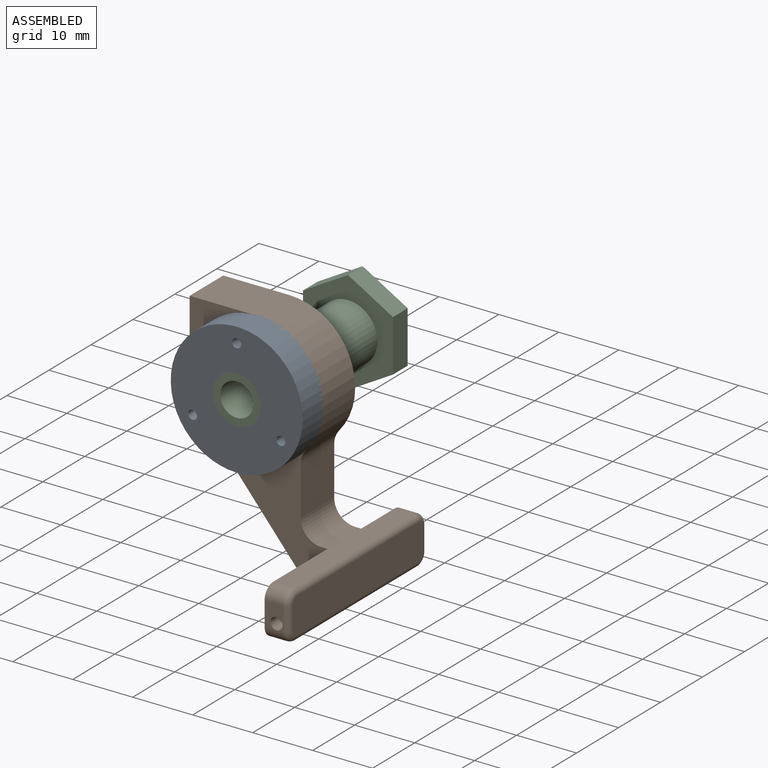
[diagram: assembled view]
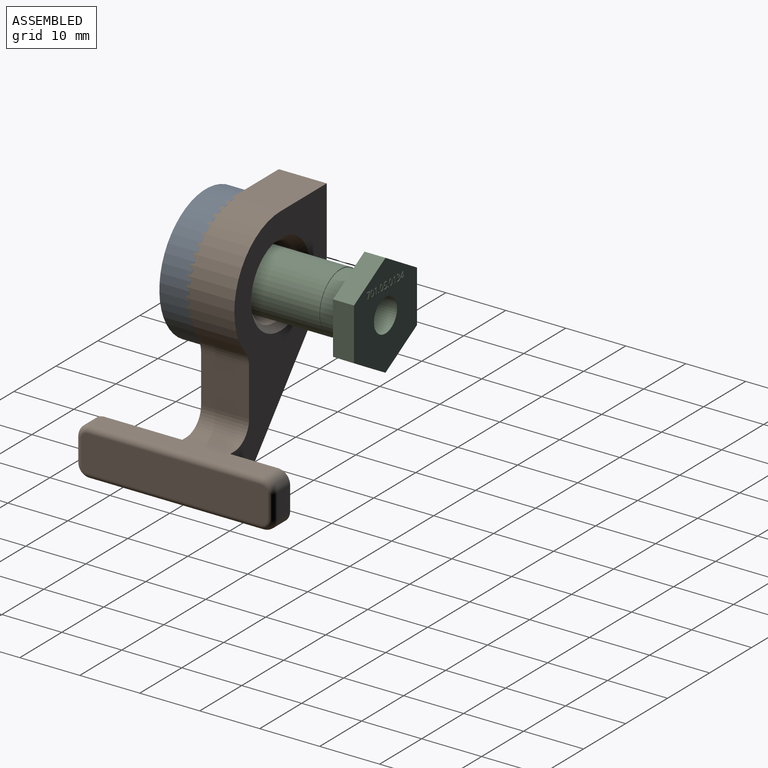
[diagram: assembled view, second angle]
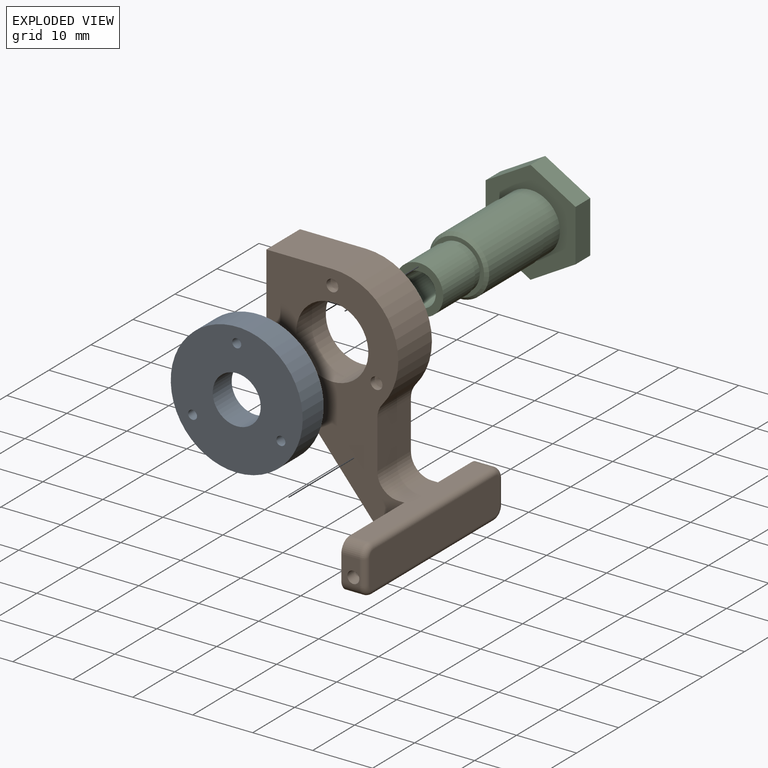
[diagram: exploded view]
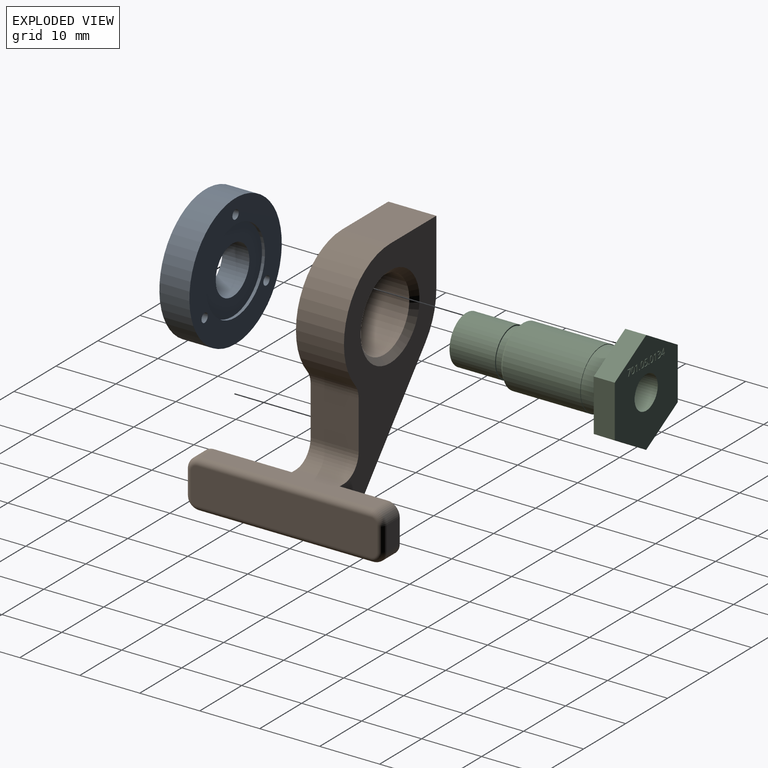
[diagram: exploded view, second angle]
ASSEMBLY  parts=3 mates=2
PART A: 9 faces, bbox 22x5x22 mm
  f0: cylinder r=4mm len=8mm, axis (0,1,0), area 113.1mm2, adj f2,f8
  f1: cylinder r=11mm len=22mm, axis (0,1,0), area 345.6mm2, adj f2,f3
  f2: plane 22x22mm, normal (0,-1,0), area 324.6mm2, adj f0,f1,f4,f5,f6
  f3: plane 22x22mm, normal (0,1,0), area 220.9mm2, adj f1,f4,f5,f6,f7
  f4: cylinder r=0.75mm len=5mm, axis (0,1,0), area 23.6mm2, adj f2,f3
  f5: cylinder r=0.75mm len=5mm, axis (0,1,0), area 23.6mm2, adj f2,f3
  f6: cylinder r=0.75mm len=5mm, axis (0,1,0), area 23.6mm2, adj f2,f3
  f7: cylinder r=7mm len=14mm, axis (0,1,0), area 22mm2, adj f3,f8
  f8: plane 14x14mm, normal (0,1,0), area 103.7mm2, adj f0,f7
PART B: 236 faces, bbox 27x33.3x40.2 mm
  f0: plane 1x1mm, normal (0,-1,0), area 0.2mm2, adj f20,f226,f235
  f1: plane 31x6mm, normal (1,0,0), area 185.1mm2, adj f19,f20,f21,f22,f227,f229,f231,f233
  f2: plane 21.93x18.4mm, normal (-0.77,0,-0.64), area 218.2mm2, adj f5,f6,f14,f16,f30,f31,f32,f33
  f3: plane 11x8mm, normal (-1,0,0), area 88mm2, adj f4,f5,f14,f16
  f4: plane 11x8mm, normal (0,0,1), area 88mm2, adj f3,f11,f14,f16
  f5: cylinder r=11mm len=8mm, axis (0,1,0), area 61.4mm2, adj f2,f3,f14,f16
  f6: plane 29x5.03mm, normal (0,0,-1), area 103.2mm2, adj f2,f14,f15,f16,f17,f22,f226,f230
  f7: plane 29x4mm, normal (0,0,1), area 95mm2, adj f8,f14,f15,f16,f17,f19,f228,f232
  f8: cylinder r=3.5mm len=8mm, axis (0,1,0), area 44mm2, adj f7,f9,f14,f16
  f9: plane 8.05x8mm, normal (1,0,0), area 64.4mm2, adj f8,f10,f14,f16
  f10: cylinder r=3.5mm len=8mm, axis (0,1,0), area 19.9mm2, adj f9,f11,f14,f16
  f11: cylinder r=11mm len=18.17mm, axis (0,1,0), area 200.7mm2, adj f4,f10,f14,f16
  f12: plane 4x3mm, normal (0,-1,0), area 8.6mm2, adj f15,f20,f226,f228,f235
  f13: plane 4x3mm, normal (0,1,0), area 12mm2, adj f17,f21,f230,f232
  f14: plane 40x23mm, normal (0,-1,0), area 424.4mm2, adj f2,f3,f4,f5,f6,f7,f8,f9
  f15: plane 15x8mm, normal (-1,0,0), area 118.3mm2, adj f6,f7,f12,f14,f226,f228
  f16: plane 40x23mm, normal (0,1,0), area 393mm2, adj f2,f3,f4,f5,f6,f7,f8,f9
  f17: plane 10x8mm, normal (-1,0,0), area 78.3mm2, adj f6,f7,f13,f16,f230,f232
  f18: cylinder r=6mm len=12mm, axis (0,1,0), area 263.9mm2, adj f14,f29
  f19: cylinder r=1mm len=29mm, axis (0,1,0), area 45.6mm2, adj f1,f7,f229,f233
  f20: cylinder r=1mm len=4mm, axis (0,0,-1), area 6.3mm2, adj f0,f1,f12,f227,f229
  f21: cylinder r=1mm len=4mm, axis (0,0,1), area 6.3mm2, adj f1,f13,f231,f233
  f22: cylinder r=1mm len=29mm, axis (0,-1,0), area 45.6mm2, adj f1,f6,f227,f231
  f23: cone r=0mm half-angle=59deg, axis (0,-1,0), area 3.7mm2, adj f24
  f24: cylinder r=1mm len=2mm, axis (0,-1,0), area 6.3mm2, adj f14,f23
  f25: cone r=0mm half-angle=59deg, axis (0,-1,0), area 3.7mm2, adj f26
  f26: cylinder r=1mm len=2mm, axis (0,-1,0), area 6.3mm2, adj f14,f25
  f27: cone r=0mm half-angle=59deg, axis (0,-1,0), area 3.7mm2, adj f28
  f28: cylinder r=1mm len=2mm, axis (0,-1,0), area 6.3mm2, adj f14,f27
  f29: cone r=7mm half-angle=45deg, axis (0,1,0), area 57.8mm2, adj f16,f18
  f30: extruded ~0.14x0.1mm, area 0mm2, adj f2,f31,f37,f38
  f31: extruded ~0.14x0.11mm, area 0mm2, adj f2,f30,f32,f38
  f32: extruded ~0.15x0.15mm, area 0mm2, adj f2,f31,f33,f38
  f33: extruded ~0.16x0.16mm, area 0mm2, adj f2,f32,f34,f38
  f34: extruded ~0.14x0.11mm, area 0mm2, adj f2,f33,f35,f38
  f35: extruded ~0.14x0.11mm, area 0mm2, adj f2,f34,f36,f38
  f36: extruded ~0.16x0.16mm, area 0mm2, adj f2,f35,f37,f38
  f37: extruded ~0.16x0.15mm, area 0mm2, adj f2,f30,f36,f38
  f38: plane 0.37x0.25mm, normal (-0.77,0,-0.64), area 0.1mm2, adj f30,f31,f32,f33,f34,f35,f36,f37
  f39: extruded ~0.31x0.15mm, area 0mm2, adj f2,f40,f66,f67
  f40: extruded ~0.36x0.19mm, area 0mm2, adj f2,f39,f41,f67
  f41: extruded ~0.41x0.37mm, area 0mm2, adj f2,f40,f42,f67
  f42: extruded ~0.32x0.29mm, area 0mm2, adj f2,f41,f43,f67
  f43: extruded ~0.28x0.26mm, area 0mm2, adj f2,f42,f44,f67
  f44: plane 0.15x0.15mm, normal (0.51,-0.6,-0.61), area 0mm2, adj f2,f43,f45,f67
  f45: extruded ~0.27x0.25mm, area 0mm2, adj f2,f44,f46,f67
  f46: extruded ~0.25x0.23mm, area 0mm2, adj f2,f45,f47,f67
  f47: extruded ~0.27x0.25mm, area 0mm2, adj f2,f46,f48,f67
  f48: extruded ~0.23x0.14mm, area 0mm2, adj f2,f47,f49,f67
  f49: extruded ~0.28x0.17mm, area 0mm2, adj f2,f48,f50,f67
  f50: extruded ~0.35x0.31mm, area 0mm2, adj f2,f49,f51,f67
  f51: plane 0.22x0.2mm, normal (0,1,0), area 0mm2, adj f2,f50,f52,f67
  f52: plane 0.19x0.08mm, normal (0.64,0,-0.77), area 0mm2, adj f2,f51,f53,f67
  f53: plane 0.21x0.2mm, normal (0,-1,0), area 0mm2, adj f2,f52,f54,f67
  f54: extruded ~0.5x0.44mm, area 0.1mm2, adj f2,f53,f55,f67
  f55: extruded ~0.46x0.41mm, area 0.1mm2, adj f2,f54,f56,f67
  f56: extruded ~0.28x0.25mm, area 0mm2, adj f2,f55,f57,f67
  f57: extruded ~0.27x0.25mm, area 0mm2, adj f2,f56,f58,f67
  f58: plane 0.21x0.08mm, normal (0.64,0,-0.77), area 0mm2, adj f2,f57,f59,f67
  f59: extruded ~0.26x0.24mm, area 0mm2, adj f2,f58,f60,f67
  f60: extruded ~0.29x0.26mm, area 0mm2, adj f2,f59,f61,f67
  f61: extruded ~0.49x0.44mm, area 0.1mm2, adj f2,f60,f62,f67
  f62: extruded ~0.44x0.22mm, area 0mm2, adj f2,f61,f63,f67
  f63: extruded ~0.32x0.15mm, area 0mm2, adj f2,f62,f64,f67
  f64: extruded ~0.34x0.3mm, area 0mm2, adj f2,f63,f65,f67
  f65: plane 0.08x0.06mm, normal (-0.64,0,0.77), area 0mm2, adj f2,f64,f66,f67
  f66: extruded ~0.3x0.27mm, area 0mm2, adj f2,f39,f65,f67
  f67: plane 2.04x0.99mm, normal (-0.77,0,-0.64), area 0.9mm2, adj f39,f40,f41,f42,f43,f44,f45,f46
  f68: extruded ~0.31x0.15mm, area 0mm2, adj f2,f69,f95,f96
  f69: extruded ~0.36x0.19mm, area 0mm2, adj f2,f68,f70,f96
  f70: extruded ~0.41x0.37mm, area 0mm2, adj f2,f69,f71,f96
  f71: extruded ~0.32x0.29mm, area 0mm2, adj f2,f70,f72,f96
  f72: extruded ~0.28x0.26mm, area 0mm2, adj f2,f71,f73,f96
  f73: plane 0.15x0.15mm, normal (0.51,-0.6,-0.61), area 0mm2, adj f2,f72,f74,f96
  f74: extruded ~0.27x0.25mm, area 0mm2, adj f2,f73,f75,f96
  f75: extruded ~0.25x0.23mm, area 0mm2, adj f2,f74,f76,f96
  f76: extruded ~0.27x0.25mm, area 0mm2, adj f2,f75,f77,f96
  f77: extruded ~0.23x0.14mm, area 0mm2, adj f2,f76,f78,f96
  f78: extruded ~0.28x0.17mm, area 0mm2, adj f2,f77,f79,f96
  f79: extruded ~0.35x0.31mm, area 0mm2, adj f2,f78,f80,f96
  f80: plane 0.22x0.2mm, normal (0,1,0), area 0mm2, adj f2,f79,f81,f96
  f81: plane 0.19x0.08mm, normal (0.64,0,-0.77), area 0mm2, adj f2,f80,f82,f96
  f82: plane 0.21x0.2mm, normal (0,-1,0), area 0mm2, adj f2,f81,f83,f96
  f83: extruded ~0.5x0.44mm, area 0.1mm2, adj f2,f82,f84,f96
  f84: extruded ~0.46x0.41mm, area 0.1mm2, adj f2,f83,f85,f96
  f85: extruded ~0.28x0.25mm, area 0mm2, adj f2,f84,f86,f96
  f86: extruded ~0.27x0.25mm, area 0mm2, adj f2,f85,f87,f96
  f87: plane 0.21x0.08mm, normal (0.64,0,-0.77), area 0mm2, adj f2,f86,f88,f96
  f88: extruded ~0.26x0.24mm, area 0mm2, adj f2,f87,f89,f96
  f89: extruded ~0.29x0.26mm, area 0mm2, adj f2,f88,f90,f96
  f90: extruded ~0.49x0.44mm, area 0.1mm2, adj f2,f89,f91,f96
  f91: extruded ~0.44x0.22mm, area 0mm2, adj f2,f90,f92,f96
  f92: extruded ~0.32x0.15mm, area 0mm2, adj f2,f91,f93,f96
  f93: extruded ~0.34x0.3mm, area 0mm2, adj f2,f92,f94,f96
  f94: plane 0.08x0.06mm, normal (-0.64,0,0.77), area 0mm2, adj f2,f93,f95,f96
  f95: extruded ~0.3x0.27mm, area 0mm2, adj f2,f68,f94,f96
  f96: plane 2.04x0.99mm, normal (-0.77,0,-0.64), area 0.9mm2, adj f68,f69,f70,f71,f72,f73,f74,f75
  f97: extruded ~0.63x0.14mm, area 0.1mm2, adj f98,f112,f113,f223
  f98: extruded ~0.63x0.14mm, area 0.1mm2, adj f97,f99,f113,f223
  f99: extruded ~0.31x0.29mm, area 0mm2, adj f98,f100,f113,f223
  f100: extruded ~0.31x0.29mm, area 0mm2, adj f99,f101,f113,f223
  f101: extruded ~0.63x0.14mm, area 0.1mm2, adj f100,f102,f113,f223
  f102: extruded ~0.63x0.14mm, area 0.1mm2, adj f101,f103,f113,f223
  f103: extruded ~0.31x0.29mm, area 0mm2, adj f102,f112,f113,f223
  f104: extruded ~0.77x0.19mm, area 0.1mm2, adj f2,f105,f111,f113
  f105: extruded ~0.76x0.19mm, area 0.1mm2, adj f2,f104,f106,f113
  f106: extruded ~0.44x0.39mm, area 0.1mm2, adj f2,f105,f107,f113
  f107: extruded ~0.44x0.39mm, area 0.1mm2, adj f2,f106,f108,f113
  f108: extruded ~0.77x0.19mm, area 0.1mm2, adj f2,f107,f109,f113
  f109: extruded ~0.76x0.19mm, area 0.1mm2, adj f2,f108,f110,f113
  f110: extruded ~0.44x0.39mm, area 0.1mm2, adj f2,f109,f111,f113
  f111: extruded ~0.44x0.4mm, area 0.1mm2, adj f2,f104,f110,f113
  f112: extruded ~0.31x0.29mm, area 0mm2, adj f97,f103,f113,f223
  f113: plane 2.04x1mm, normal (-0.77,0,-0.64), area 1mm2, adj f97,f98,f99,f100,f101,f102,f103,f104
  f114: extruded ~0.31x0.15mm, area 0mm2, adj f2,f115,f141,f142
  f115: extruded ~0.36x0.19mm, area 0mm2, adj f2,f114,f116,f142
  f116: extruded ~0.41x0.37mm, area 0mm2, adj f2,f115,f117,f142
  f117: extruded ~0.32x0.29mm, area 0mm2, adj f2,f116,f118,f142
  f118: extruded ~0.28x0.26mm, area 0mm2, adj f2,f117,f119,f142
  f119: plane 0.15x0.15mm, normal (0.51,-0.6,-0.61), area 0mm2, adj f2,f118,f120,f142
  f120: extruded ~0.27x0.25mm, area 0mm2, adj f2,f119,f121,f142
  f121: extruded ~0.25x0.23mm, area 0mm2, adj f2,f120,f122,f142
  f122: extruded ~0.27x0.25mm, area 0mm2, adj f2,f121,f123,f142
  f123: extruded ~0.23x0.14mm, area 0mm2, adj f2,f122,f124,f142
  f124: extruded ~0.28x0.17mm, area 0mm2, adj f2,f123,f125,f142
  f125: extruded ~0.35x0.31mm, area 0mm2, adj f2,f124,f126,f142
  f126: plane 0.22x0.2mm, normal (0,1,0), area 0mm2, adj f2,f125,f127,f142
  f127: plane 0.19x0.08mm, normal (0.64,0,-0.77), area 0mm2, adj f2,f126,f128,f142
  f128: plane 0.21x0.2mm, normal (0,-1,0), area 0mm2, adj f2,f127,f129,f142
  f129: extruded ~0.5x0.44mm, area 0.1mm2, adj f2,f128,f130,f142
  f130: extruded ~0.46x0.41mm, area 0.1mm2, adj f2,f129,f131,f142
  f131: extruded ~0.28x0.25mm, area 0mm2, adj f2,f130,f132,f142
  f132: extruded ~0.27x0.25mm, area 0mm2, adj f2,f131,f133,f142
  f133: plane 0.21x0.08mm, normal (0.64,0,-0.77), area 0mm2, adj f2,f132,f134,f142
  f134: extruded ~0.26x0.24mm, area 0mm2, adj f2,f133,f135,f142
  f135: extruded ~0.29x0.26mm, area 0mm2, adj f2,f134,f136,f142
  f136: extruded ~0.49x0.44mm, area 0.1mm2, adj f2,f135,f137,f142
  f137: extruded ~0.44x0.22mm, area 0mm2, adj f2,f136,f138,f142
  f138: extruded ~0.32x0.15mm, area 0mm2, adj f2,f137,f139,f142
  f139: extruded ~0.34x0.3mm, area 0mm2, adj f2,f138,f140,f142
  f140: plane 0.08x0.06mm, normal (-0.64,0,0.77), area 0mm2, adj f2,f139,f141,f142
  f141: extruded ~0.3x0.27mm, area 0mm2, adj f2,f114,f140,f142
  f142: plane 2.04x0.99mm, normal (-0.77,0,-0.64), area 0.9mm2, adj f114,f115,f116,f117,f118,f119,f120,f121
  f143: plane 0.23x0.22mm, normal (0,-1,0), area 0mm2, adj f2,f144,f151,f152
  f144: plane 1.98x0.08mm, normal (-0.64,0,0.77), area 0.2mm2, adj f2,f143,f145,f152
  f145: plane 0.21x0.2mm, normal (0,1,0), area 0mm2, adj f2,f144,f146,f152
  f146: plane 0.47x0.41mm, normal (0.39,0.79,-0.47), area 0.1mm2, adj f2,f145,f147,f152
  f147: plane 0.16x0.15mm, normal (0.51,-0.61,-0.61), area 0mm2, adj f2,f146,f148,f152
  f148: extruded ~0.31x0.28mm, area 0mm2, adj f2,f147,f149,f152
  f149: extruded ~0.12x0.11mm, area 0mm2, adj f2,f148,f150,f152
  f150: extruded ~0.33x0.08mm, area 0mm2, adj f2,f149,f151,f152
  f151: plane 1.41x0.08mm, normal (0.64,0,-0.77), area 0.1mm2, adj f2,f143,f150,f152
  f152: plane 1.98x0.55mm, normal (-0.77,0,-0.64), area 0.5mm2, adj f143,f144,f145,f146,f147,f148,f149,f150
  f153: extruded ~0.14x0.1mm, area 0mm2, adj f2,f154,f160,f161
  f154: extruded ~0.14x0.11mm, area 0mm2, adj f2,f153,f155,f161
  f155: extruded ~0.15x0.15mm, area 0mm2, adj f2,f154,f156,f161
  f156: extruded ~0.16x0.16mm, area 0mm2, adj f2,f155,f157,f161
  f157: extruded ~0.14x0.11mm, area 0mm2, adj f2,f156,f158,f161
  f158: extruded ~0.14x0.11mm, area 0mm2, adj f2,f157,f159,f161
  f159: extruded ~0.16x0.16mm, area 0mm2, adj f2,f158,f160,f161
  f160: extruded ~0.16x0.15mm, area 0mm2, adj f2,f153,f159,f161
  f161: plane 0.37x0.25mm, normal (-0.77,0,-0.64), area 0.1mm2, adj f153,f154,f155,f156,f157,f158,f159,f160
  f162: plane 0.23x0.22mm, normal (0,-1,0), area 0mm2, adj f2,f163,f170,f171
  f163: plane 1.98x0.08mm, normal (-0.64,0,0.77), area 0.2mm2, adj f2,f162,f164,f171
  f164: plane 0.21x0.2mm, normal (0,1,0), area 0mm2, adj f2,f163,f165,f171
  f165: plane 0.47x0.41mm, normal (0.39,0.79,-0.47), area 0.1mm2, adj f2,f164,f166,f171
  f166: plane 0.16x0.15mm, normal (0.51,-0.61,-0.61), area 0mm2, adj f2,f165,f167,f171
  f167: extruded ~0.31x0.28mm, area 0mm2, adj f2,f166,f168,f171
  f168: extruded ~0.12x0.11mm, area 0mm2, adj f2,f167,f169,f171
  f169: extruded ~0.33x0.08mm, area 0mm2, adj f2,f168,f170,f171
  f170: plane 1.41x0.08mm, normal (0.64,0,-0.77), area 0.1mm2, adj f2,f162,f169,f171
  f171: plane 1.98x0.55mm, normal (-0.77,0,-0.64), area 0.5mm2, adj f162,f163,f164,f165,f166,f167,f168,f169
  f172: extruded ~0.29x0.27mm, area 0mm2, adj f173,f196,f197,f224
  f173: extruded ~0.24x0.22mm, area 0mm2, adj f172,f174,f197,f224
  f174: extruded ~0.19x0.18mm, area 0mm2, adj f173,f175,f197,f224
  f175: extruded ~0.26x0.11mm, area 0mm2, adj f174,f176,f197,f224
  f176: extruded ~0.18x0.12mm, area 0mm2, adj f175,f177,f197,f224
  f177: extruded ~0.19x0.18mm, area 0mm2, adj f176,f178,f197,f224
  f178: extruded ~0.24x0.22mm, area 0mm2, adj f177,f179,f197,f224
  f179: extruded ~0.29x0.27mm, area 0mm2, adj f178,f180,f197,f224
  f180: extruded ~0.31x0.14mm, area 0mm2, adj f179,f196,f197,f224
  f181: extruded ~0.87x0.24mm, area 0.1mm2, adj f2,f182,f195,f197
  f182: extruded ~0.64x0.2mm, area 0.1mm2, adj f2,f181,f183,f197
  f183: extruded ~0.44x0.39mm, area 0.1mm2, adj f2,f182,f184,f197
  f184: extruded ~0.41x0.37mm, area 0.1mm2, adj f2,f183,f185,f197
  f185: extruded ~0.49x0.19mm, area 0.1mm2, adj f2,f184,f186,f197
  f186: extruded ~0.44x0.18mm, area 0mm2, adj f2,f185,f187,f197
  f187: extruded ~0.39x0.35mm, area 0mm2, adj f2,f186,f188,f197
  f188: extruded ~0.43x0.38mm, area 0.1mm2, adj f2,f187,f189,f197
  f189: plane 0.09x0.08mm, normal (0,1,0), area 0mm2, adj f2,f188,f190,f197
  f190: extruded ~0.62x0.21mm, area 0.1mm2, adj f2,f189,f191,f197
  f191: extruded ~0.44x0.39mm, area 0.1mm2, adj f2,f190,f192,f197
  f192: extruded ~0.25x0.23mm, area 0mm2, adj f2,f191,f193,f197
  f193: plane 0.19x0.08mm, normal (-0.64,0,0.77), area 0mm2, adj f2,f192,f194,f197
  f194: extruded ~0.25x0.23mm, area 0mm2, adj f2,f193,f195,f197
  f195: extruded ~0.58x0.51mm, area 0.1mm2, adj f2,f181,f194,f197
  f196: extruded ~0.35x0.15mm, area 0mm2, adj f172,f180,f197,f224
  f197: plane 2.04x0.99mm, normal (-0.77,0,-0.64), area 1mm2, adj f172,f173,f174,f175,f176,f177,f178,f179
  f198: extruded ~0.63x0.14mm, area 0.1mm2, adj f199,f213,f214,f225
  f199: extruded ~0.63x0.14mm, area 0.1mm2, adj f198,f200,f214,f225
  f200: extruded ~0.31x0.29mm, area 0mm2, adj f199,f201,f214,f225
  f201: extruded ~0.31x0.29mm, area 0mm2, adj f200,f202,f214,f225
  f202: extruded ~0.63x0.14mm, area 0.1mm2, adj f201,f203,f214,f225
  f203: extruded ~0.63x0.14mm, area 0.1mm2, adj f202,f204,f214,f225
  f204: extruded ~0.31x0.29mm, area 0mm2, adj f203,f213,f214,f225
  f205: extruded ~0.77x0.19mm, area 0.1mm2, adj f2,f206,f212,f214
  f206: extruded ~0.76x0.19mm, area 0.1mm2, adj f2,f205,f207,f214
  f207: extruded ~0.44x0.39mm, area 0.1mm2, adj f2,f206,f208,f214
  f208: extruded ~0.44x0.39mm, area 0.1mm2, adj f2,f207,f209,f214
  f209: extruded ~0.77x0.19mm, area 0.1mm2, adj f2,f208,f210,f214
  f210: extruded ~0.76x0.19mm, area 0.1mm2, adj f2,f209,f211,f214
  f211: extruded ~0.44x0.39mm, area 0.1mm2, adj f2,f210,f212,f214
  f212: extruded ~0.44x0.4mm, area 0.1mm2, adj f2,f205,f211,f214
  f213: extruded ~0.31x0.29mm, area 0mm2, adj f198,f204,f214,f225
  f214: plane 2.04x1mm, normal (-0.77,0,-0.64), area 1mm2, adj f198,f199,f200,f201,f202,f203,f204,f205
  f215: plane 1.78x0.69mm, normal (0.58,0.42,-0.7), area 0.2mm2, adj f2,f216,f221,f222
  f216: plane 0.26x0.24mm, normal (0,-1,0), area 0mm2, adj f2,f215,f217,f222
  f217: plane 1.8x0.69mm, normal (-0.59,-0.41,0.7), area 0.2mm2, adj f2,f216,f218,f222
  f218: plane 0.18x0.08mm, normal (-0.64,0,0.77), area 0mm2, adj f2,f217,f219,f222
  f219: plane 1.08x0.92mm, normal (0,1,0), area 0.1mm2, adj f2,f218,f220,f222
  f220: plane 0.21x0.08mm, normal (0.64,0,-0.77), area 0mm2, adj f2,f219,f221,f222
  f221: plane 0.89x0.77mm, normal (0,-1,0), area 0.1mm2, adj f2,f215,f220,f222
  f222: plane 1.98x1.01mm, normal (-0.77,0,-0.64), area 0.7mm2, adj f215,f216,f217,f218,f219,f220,f221
  f223: plane 1.65x0.65mm, normal (-0.77,0,-0.64), area 1.2mm2, adj f97,f98,f99,f100,f101,f102,f103,f112
  f224: plane 0.89x0.64mm, normal (-0.77,0,-0.64), area 0.6mm2, adj f172,f173,f174,f175,f176,f177,f178,f179
  f225: plane 1.65x0.65mm, normal (-0.77,0,-0.64), area 1.2mm2, adj f198,f199,f200,f201,f202,f203,f204,f213
  f226: cylinder r=2mm len=3mm, axis (-1,0,0), area 9.4mm2, adj f0,f6,f12,f15,f227
  f227: torus R=1mm, axis (1,0,0), area 4mm2, adj f1,f20,f22,f226
  f228: cylinder r=2mm len=3mm, axis (1,0,0), area 9.4mm2, adj f7,f12,f15,f229
  f229: torus R=1mm, axis (1,0,0), area 4mm2, adj f1,f19,f20,f228
  f230: cylinder r=2mm len=3mm, axis (1,0,0), area 9.4mm2, adj f6,f13,f17,f231
  f231: torus R=1mm, axis (1,0,0), area 4mm2, adj f1,f21,f22,f230
  f232: cylinder r=2mm len=3mm, axis (-1,0,0), area 9.4mm2, adj f7,f13,f17,f233
  f233: torus R=1mm, axis (1,0,0), area 4mm2, adj f1,f19,f21,f232
  f234: cone r=0mm half-angle=59deg, axis (0,-1,0), area 3.7mm2, adj f235
  f235: cylinder r=1mm len=7mm, axis (0,-1,0), area 44mm2, adj f0,f12,f234
PART C: 186 faces, bbox 15x30x17.3 mm
  f0: plane 17.32x15mm, normal (0,1,0), area 167.3mm2, adj f4,f11,f12,f13,f14,f15,f16,f25
  f1: plane 17.32x15mm, normal (0,-1,0), area 119.4mm2, adj f5,f11,f12,f13,f14,f15,f16
  f2: cylinder r=4mm len=8mm, axis (0,-1,0), area 191mm2, adj f3,f10
  f3: plane 8x8mm, normal (0,-1,0), area 26.5mm2, adj f2,f4
  f4: cylinder r=2.75mm len=30mm, axis (0,-1,0), area 518.4mm2, adj f0,f3
  f5: cylinder r=4.9mm len=9.8mm, axis (0,-1,0), area 123.2mm2, adj f1,f6
  f6: plane 10x10mm, normal (0,1,0), area 3.1mm2, adj f5,f7
  f7: cylinder r=5mm len=13mm, axis (0,-1,0), area 408.4mm2, adj f6,f17
  f8: plane 9x9mm, normal (0,-1,0), area 18.3mm2, adj f9,f17
  f9: cylinder r=3.8mm len=7.6mm, axis (0,-1,0), area 33.4mm2, adj f8,f10
  f10: plane 8x8mm, normal (0,1,0), area 4.9mm2, adj f2,f9
  f11: plane 7.5x4.33mm, normal (-0.5,0,0.87), area 30.3mm2, adj f0,f1,f12,f16
  f12: plane 8.66x3.5mm, normal (-1,0,0), area 30.3mm2, adj f0,f1,f11,f13
  f13: plane 7.5x4.33mm, normal (-0.5,0,-0.87), area 30.3mm2, adj f0,f1,f12,f14
  f14: plane 7.5x4.33mm, normal (0.5,0,-0.87), area 30.3mm2, adj f0,f1,f13,f15
  f15: plane 8.66x3.5mm, normal (1,0,0), area 30.3mm2, adj f0,f1,f14,f16
  f16: plane 7.5x4.33mm, normal (0.5,0,0.87), area 30.3mm2, adj f0,f1,f11,f15
  f17: cone r=4.5mm half-angle=45deg, axis (0,1,0), area 21.1mm2, adj f7,f8
  f18: extruded ~0.36x0.1mm, area 0mm2, adj f19,f33,f34,f182
  f19: extruded ~0.36x0.1mm, area 0mm2, adj f18,f20,f34,f182
  f20: extruded ~0.18x0.11mm, area 0mm2, adj f19,f21,f34,f182
  f21: extruded ~0.19x0.11mm, area 0mm2, adj f20,f22,f34,f182
  f22: extruded ~0.35x0.1mm, area 0mm2, adj f21,f23,f34,f182
  f23: extruded ~0.36x0.1mm, area 0mm2, adj f22,f24,f34,f182
  f24: extruded ~0.19x0.11mm, area 0mm2, adj f23,f33,f34,f182
  f25: extruded ~0.44x0.1mm, area 0mm2, adj f0,f26,f32,f34
  f26: extruded ~0.43x0.1mm, area 0mm2, adj f0,f25,f27,f34
  f27: extruded ~0.28x0.15mm, area 0mm2, adj f0,f26,f28,f34
  f28: extruded ~0.28x0.14mm, area 0mm2, adj f0,f27,f29,f34
  f29: extruded ~0.44x0.1mm, area 0mm2, adj f0,f28,f30,f34
  f30: extruded ~0.43x0.1mm, area 0mm2, adj f0,f29,f31,f34
  f31: extruded ~0.28x0.15mm, area 0mm2, adj f0,f30,f32,f34
  f32: extruded ~0.28x0.14mm, area 0mm2, adj f0,f25,f31,f34
  f33: extruded ~0.18x0.11mm, area 0mm2, adj f18,f24,f34,f182
  f34: plane 1.16x0.74mm, normal (0,1,0), area 0.3mm2, adj f18,f19,f20,f21,f22,f23,f24,f25
  f35: extruded ~0.36x0.1mm, area 0mm2, adj f36,f50,f51,f183
  f36: extruded ~0.36x0.1mm, area 0mm2, adj f35,f37,f51,f183
  f37: extruded ~0.18x0.11mm, area 0mm2, adj f36,f38,f51,f183
  f38: extruded ~0.19x0.11mm, area 0mm2, adj f37,f39,f51,f183
  f39: extruded ~0.35x0.1mm, area 0mm2, adj f38,f40,f51,f183
  f40: extruded ~0.36x0.1mm, area 0mm2, adj f39,f41,f51,f183
  f41: extruded ~0.19x0.11mm, area 0mm2, adj f40,f50,f51,f183
  f42: extruded ~0.44x0.1mm, area 0mm2, adj f0,f43,f49,f51
  f43: extruded ~0.43x0.1mm, area 0mm2, adj f0,f42,f44,f51
  f44: extruded ~0.28x0.15mm, area 0mm2, adj f0,f43,f45,f51
  f45: extruded ~0.28x0.14mm, area 0mm2, adj f0,f44,f46,f51
  f46: extruded ~0.44x0.1mm, area 0mm2, adj f0,f45,f47,f51
  f47: extruded ~0.43x0.1mm, area 0mm2, adj f0,f46,f48,f51
  f48: extruded ~0.28x0.15mm, area 0mm2, adj f0,f47,f49,f51
  f49: extruded ~0.28x0.14mm, area 0mm2, adj f0,f42,f48,f51
  f50: extruded ~0.18x0.11mm, area 0mm2, adj f35,f41,f51,f183
  f51: plane 1.16x0.74mm, normal (0,1,0), area 0.3mm2, adj f35,f36,f37,f38,f39,f40,f41,f42
  f52: extruded ~0.18x0.1mm, area 0mm2, adj f0,f53,f79,f80
  f53: extruded ~0.21x0.1mm, area 0mm2, adj f0,f52,f54,f80
  f54: extruded ~0.25x0.1mm, area 0mm2, adj f0,f53,f55,f80
  f55: extruded ~0.19x0.1mm, area 0mm2, adj f0,f54,f56,f80
  f56: extruded ~0.16x0.1mm, area 0mm2, adj f0,f55,f57,f80
  f57: plane 0.1x0.09mm, normal (-0.8,0,0.6), area 0mm2, adj f0,f56,f58,f80
  f58: extruded ~0.15x0.1mm, area 0mm2, adj f0,f57,f59,f80
  f59: extruded ~0.14x0.1mm, area 0mm2, adj f0,f58,f60,f80
  f60: extruded ~0.15x0.1mm, area 0mm2, adj f0,f59,f61,f80
  f61: extruded ~0.13x0.1mm, area 0mm2, adj f0,f60,f62,f80
  f62: extruded ~0.16x0.1mm, area 0mm2, adj f0,f61,f63,f80
  f63: extruded ~0.21x0.1mm, area 0mm2, adj f0,f62,f64,f80
  f64: plane 0.11x0.1mm, normal (0,0,-1), area 0mm2, adj f0,f63,f65,f80
  f65: plane 0.11x0.1mm, normal (-1,0,0), area 0mm2, adj f0,f64,f66,f80
  f66: plane 0.11x0.1mm, normal (0,0,1), area 0mm2, adj f0,f65,f67,f80
  f67: extruded ~0.32x0.2mm, area 0mm2, adj f0,f66,f68,f80
  f68: extruded ~0.29x0.23mm, area 0mm2, adj f0,f67,f69,f80
  f69: extruded ~0.16x0.1mm, area 0mm2, adj f0,f68,f70,f80
  f70: extruded ~0.16x0.1mm, area 0mm2, adj f0,f69,f71,f80
  f71: plane 0.12x0.1mm, normal (-1,0,0), area 0mm2, adj f0,f70,f72,f80
  f72: extruded ~0.14x0.1mm, area 0mm2, adj f0,f71,f73,f80
  f73: extruded ~0.16x0.1mm, area 0mm2, adj f0,f72,f74,f80
  f74: extruded ~0.32x0.1mm, area 0mm2, adj f0,f73,f75,f80
  f75: extruded ~0.25x0.11mm, area 0mm2, adj f0,f74,f76,f80
  f76: extruded ~0.18x0.1mm, area 0mm2, adj f0,f75,f77,f80
  f77: extruded ~0.2x0.1mm, area 0mm2, adj f0,f76,f78,f80
  f78: plane 0.1x0.01mm, normal (1,0,0), area 0mm2, adj f0,f77,f79,f80
  f79: extruded ~0.17x0.1mm, area 0mm2, adj f0,f52,f78,f80
  f80: plane 1.16x0.74mm, normal (0,1,0), area 0.3mm2, adj f52,f53,f54,f55,f56,f57,f58,f59
  f81: plane 0.12x0.1mm, normal (0,0,1), area 0mm2, adj f0,f82,f89,f90
  f82: plane 1.12x0.1mm, normal (1,0,0), area 0.1mm2, adj f0,f81,f83,f90
  f83: plane 0.11x0.1mm, normal (0,0,-1), area 0mm2, adj f0,f82,f84,f90
  f84: plane 0.3x0.23mm, normal (-0.61,0,-0.79), area 0mm2, adj f0,f83,f85,f90
  f85: plane 0.1x0.09mm, normal (-0.79,0,0.61), area 0mm2, adj f0,f84,f86,f90
  f86: extruded ~0.18x0.15mm, area 0mm2, adj f0,f85,f87,f90
  f87: extruded ~0.1x0.04mm, area 0mm2, adj f0,f86,f88,f90
  f88: extruded ~0.19x0.1mm, area 0mm2, adj f0,f87,f89,f90
  f89: plane 0.8x0.1mm, normal (-1,0,0), area 0.1mm2, adj f0,f81,f88,f90
  f90: plane 1.12x0.41mm, normal (0,1,0), area 0.2mm2, adj f81,f82,f83,f84,f85,f86,f87,f88
  f91: extruded ~0.1x0.08mm, area 0mm2, adj f0,f92,f98,f99
  f92: extruded ~0.1x0.08mm, area 0mm2, adj f0,f91,f93,f99
  f93: extruded ~0.1x0.07mm, area 0mm2, adj f0,f92,f94,f99
  f94: extruded ~0.1x0.07mm, area 0mm2, adj f0,f93,f95,f99
  f95: extruded ~0.1x0.08mm, area 0mm2, adj f0,f94,f96,f99
  f96: extruded ~0.1x0.08mm, area 0mm2, adj f0,f95,f97,f99
  f97: extruded ~0.1x0.07mm, area 0mm2, adj f0,f96,f98,f99
  f98: extruded ~0.1x0.07mm, area 0mm2, adj f0,f91,f97,f99
  f99: plane 0.21x0.19mm, normal (0,1,0), area 0mm2, adj f91,f92,f93,f94,f95,f96,f97,f98
  f100: extruded ~0.28x0.1mm, area 0mm2, adj f0,f101,f118,f119
  f101: extruded ~0.18x0.1mm, area 0mm2, adj f0,f100,f102,f119
  f102: plane 0.34x0.1mm, normal (1,0,0.08), area 0mm2, adj f0,f101,f103,f119
  f103: plane 0.45x0.1mm, normal (0,0,1), area 0mm2, adj f0,f102,f104,f119
  f104: plane 0.12x0.1mm, normal (1,0,0), area 0mm2, adj f0,f103,f105,f119
  f105: plane 0.56x0.1mm, normal (0,0,-1), area 0.1mm2, adj f0,f104,f106,f119
  f106: plane 0.53x0.1mm, normal (-1,0,-0.08), area 0.1mm2, adj f0,f105,f107,f119
  f107: plane 0.1x0.07mm, normal (-0.54,0,0.84), area 0mm2, adj f0,f106,f108,f119
  f108: extruded ~0.2x0.1mm, area 0mm2, adj f0,f107,f109,f119
  f109: extruded ~0.29x0.24mm, area 0mm2, adj f0,f108,f110,f119
  f110: extruded ~0.18x0.1mm, area 0mm2, adj f0,f109,f111,f119
  f111: extruded ~0.21x0.1mm, area 0mm2, adj f0,f110,f112,f119
  f112: extruded ~0.16x0.1mm, area 0mm2, adj f0,f111,f113,f119
  f113: extruded ~0.13x0.1mm, area 0mm2, adj f0,f112,f114,f119
  f114: plane 0.12x0.1mm, normal (-1,0,0), area 0mm2, adj f0,f113,f115,f119
  f115: extruded ~0.29x0.1mm, area 0mm2, adj f0,f114,f116,f119
  f116: extruded ~0.31x0.1mm, area 0mm2, adj f0,f115,f117,f119
  f117: extruded ~0.27x0.11mm, area 0mm2, adj f0,f116,f118,f119
  f118: extruded ~0.24x0.1mm, area 0mm2, adj f0,f100,f117,f119
  f119: plane 1.14x0.71mm, normal (0,1,0), area 0.3mm2, adj f100,f101,f102,f103,f104,f105,f106,f107
  f120: extruded ~0.1x0.08mm, area 0mm2, adj f0,f121,f127,f128
  f121: extruded ~0.1x0.08mm, area 0mm2, adj f0,f120,f122,f128
  f122: extruded ~0.1x0.07mm, area 0mm2, adj f0,f121,f123,f128
  f123: extruded ~0.1x0.07mm, area 0mm2, adj f0,f122,f124,f128
  f124: extruded ~0.1x0.08mm, area 0mm2, adj f0,f123,f125,f128
  f125: extruded ~0.1x0.08mm, area 0mm2, adj f0,f124,f126,f128
  f126: extruded ~0.1x0.07mm, area 0mm2, adj f0,f125,f127,f128
  f127: extruded ~0.1x0.07mm, area 0mm2, adj f0,f120,f126,f128
  f128: plane 0.21x0.19mm, normal (0,1,0), area 0mm2, adj f120,f121,f122,f123,f124,f125,f126,f127
  f129: plane 0.12x0.1mm, normal (0,0,1), area 0mm2, adj f0,f130,f137,f138
  f130: plane 1.12x0.1mm, normal (1,0,0), area 0.1mm2, adj f0,f129,f131,f138
  f131: plane 0.11x0.1mm, normal (0,0,-1), area 0mm2, adj f0,f130,f132,f138
  f132: plane 0.3x0.23mm, normal (-0.61,0,-0.79), area 0mm2, adj f0,f131,f133,f138
  f133: plane 0.1x0.09mm, normal (-0.79,0,0.61), area 0mm2, adj f0,f132,f134,f138
  f134: extruded ~0.18x0.15mm, area 0mm2, adj f0,f133,f135,f138
  f135: extruded ~0.1x0.04mm, area 0mm2, adj f0,f134,f136,f138
  f136: extruded ~0.19x0.1mm, area 0mm2, adj f0,f135,f137,f138
  f137: plane 0.8x0.1mm, normal (-1,0,0), area 0.1mm2, adj f0,f129,f136,f138
  f138: plane 1.12x0.41mm, normal (0,1,0), area 0.2mm2, adj f129,f130,f131,f132,f133,f134,f135,f136
  f139: extruded ~0.36x0.1mm, area 0mm2, adj f140,f154,f155,f184
  f140: extruded ~0.36x0.1mm, area 0mm2, adj f139,f141,f155,f184
  f141: extruded ~0.18x0.11mm, area 0mm2, adj f140,f142,f155,f184
  f142: extruded ~0.19x0.11mm, area 0mm2, adj f141,f143,f155,f184
  f143: extruded ~0.35x0.1mm, area 0mm2, adj f142,f144,f155,f184
  f144: extruded ~0.36x0.1mm, area 0mm2, adj f143,f145,f155,f184
  f145: extruded ~0.19x0.11mm, area 0mm2, adj f144,f154,f155,f184
  f146: extruded ~0.44x0.1mm, area 0mm2, adj f0,f147,f153,f155
  f147: extruded ~0.43x0.1mm, area 0mm2, adj f0,f146,f148,f155
  f148: extruded ~0.28x0.15mm, area 0mm2, adj f0,f147,f149,f155
  f149: extruded ~0.28x0.14mm, area 0mm2, adj f0,f148,f150,f155
  f150: extruded ~0.44x0.1mm, area 0mm2, adj f0,f149,f151,f155
  f151: extruded ~0.43x0.1mm, area 0mm2, adj f0,f150,f152,f155
  f152: extruded ~0.28x0.15mm, area 0mm2, adj f0,f151,f153,f155
  f153: extruded ~0.28x0.14mm, area 0mm2, adj f0,f146,f152,f155
  f154: extruded ~0.18x0.11mm, area 0mm2, adj f139,f145,f155,f184
  f155: plane 1.16x0.74mm, normal (0,1,0), area 0.3mm2, adj f139,f140,f141,f142,f143,f144,f145,f146
  f156: plane 0.37x0.1mm, normal (-1,0,0), area 0mm2, adj f157,f172,f173,f185
  f157: plane 0.42x0.1mm, normal (0,0,-1), area 0mm2, adj f156,f158,f173,f185
  f158: plane 0.5x0.35mm, normal (0.82,0,0.58), area 0.1mm2, adj f157,f159,f173,f185
  f159: extruded ~0.12x0.1mm, area 0mm2, adj f158,f160,f173,f185
  f160: plane 0.1x0.01mm, normal (0,0,1), area 0mm2, adj f159,f172,f173,f185
  f161: plane 0.17x0.1mm, normal (0,0,1), area 0mm2, adj f0,f162,f171,f173
  f162: plane 0.12x0.1mm, normal (1,0,0), area 0mm2, adj f0,f161,f163,f173
  f163: plane 0.17x0.1mm, normal (0,0,-1), area 0mm2, adj f0,f162,f164,f173
  f164: plane 0.76x0.1mm, normal (1,0,0), area 0.1mm2, adj f0,f163,f165,f173
  f165: plane 0.14x0.1mm, normal (0,0,-1), area 0mm2, adj f0,f164,f166,f173
  f166: plane 0.76x0.53mm, normal (-0.82,0,-0.57), area 0.1mm2, adj f0,f165,f167,f173
  f167: plane 0.11x0.1mm, normal (-1,0,0), area 0mm2, adj f0,f166,f168,f173
  f168: plane 0.55x0.1mm, normal (0,0,1), area 0.1mm2, adj f0,f167,f169,f173
  f169: plane 0.26x0.1mm, normal (-1,0,0), area 0mm2, adj f0,f168,f170,f173
  f170: plane 0.12x0.1mm, normal (0,0,1), area 0mm2, adj f0,f169,f171,f173
  f171: plane 0.26x0.1mm, normal (1,0,0), area 0mm2, adj f0,f161,f170,f173
  f172: extruded ~0.25x0.1mm, area 0mm2, adj f156,f160,f173,f185
  f173: plane 1.13x0.84mm, normal (0,1,0), area 0.3mm2, adj f156,f157,f158,f159,f160,f161,f162,f163
  f174: plane 1.01x0.47mm, normal (-0.91,0,-0.42), area 0.1mm2, adj f0,f175,f180,f181
  f175: plane 0.14x0.1mm, normal (0,0,1), area 0mm2, adj f0,f174,f176,f181
  f176: plane 1.02x0.46mm, normal (0.91,0,0.41), area 0.1mm2, adj f0,f175,f177,f181
  f177: plane 0.1x0.1mm, normal (1,0,0), area 0mm2, adj f0,f176,f178,f181
  f178: plane 0.75x0.1mm, normal (0,0,-1), area 0.1mm2, adj f0,f177,f179,f181
  f179: plane 0.12x0.1mm, normal (-1,0,0), area 0mm2, adj f0,f178,f180,f181
  f180: plane 0.61x0.1mm, normal (0,0,1), area 0.1mm2, adj f0,f174,f179,f181
  f181: plane 1.12x0.75mm, normal (0,1,0), area 0.2mm2, adj f174,f175,f176,f177,f178,f179,f180
  f182: plane 0.94x0.48mm, normal (0,1,0), area 0.4mm2, adj f18,f19,f20,f21,f22,f23,f24,f33
  f183: plane 0.94x0.48mm, normal (0,1,0), area 0.4mm2, adj f35,f36,f37,f38,f39,f40,f41,f50
  f184: plane 0.94x0.48mm, normal (0,1,0), area 0.4mm2, adj f139,f140,f141,f142,f143,f144,f145,f154
  f185: plane 0.62x0.43mm, normal (0,1,0), area 0.1mm2, adj f156,f157,f158,f159,f160,f172
PLACE A t=(-6.67,-10.7,-2.78)mm
PLACE B rot(axis=(0,1,0),0deg) t=(-6.67,-7.2,-2.78)mm
PLACE C t=(-6.67,-15.7,-2.78)mm fixed
MATE revolute B.f18 <-> A.f0  axis (0,1,0) through (-6.67,-11.2,-2.78)mm
MATE fastened C.f2 <-> A.f1  axis (0,-1,0) through (-6.67,-15.7,-2.78)mm
